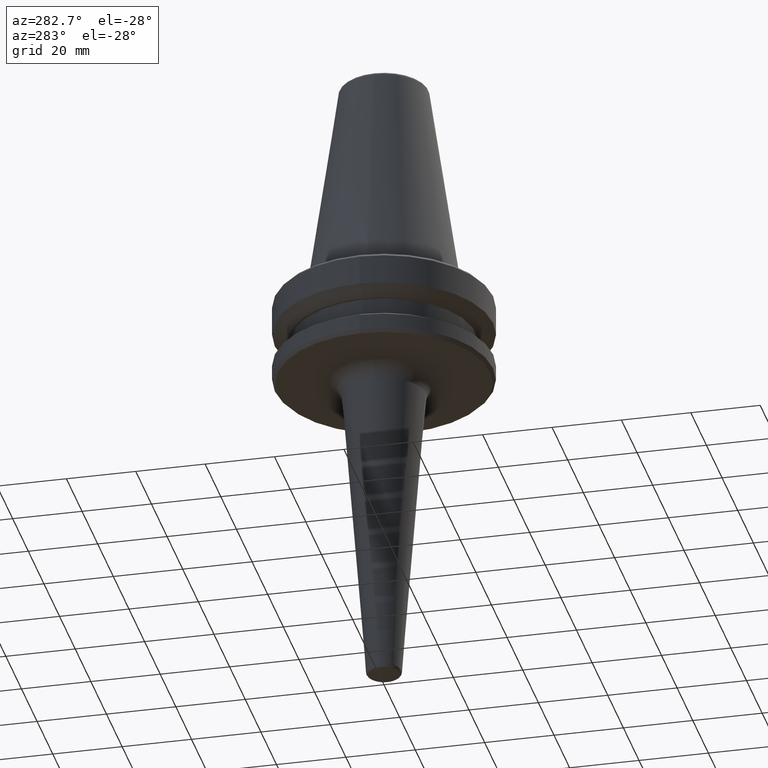
[diagram: clean part render]
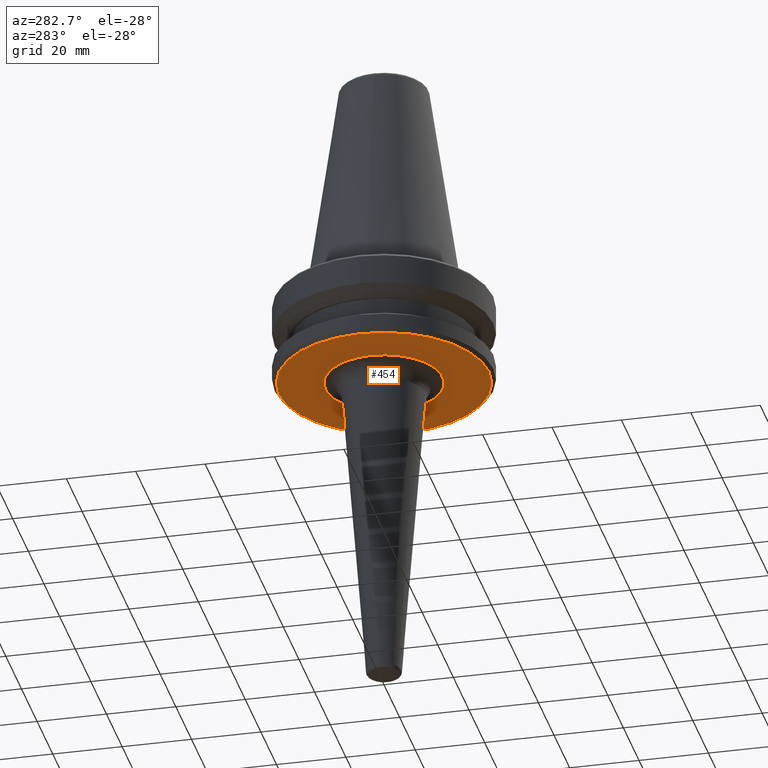
[diagram: same view with one face highlighted and labeled with its STEP entity id]
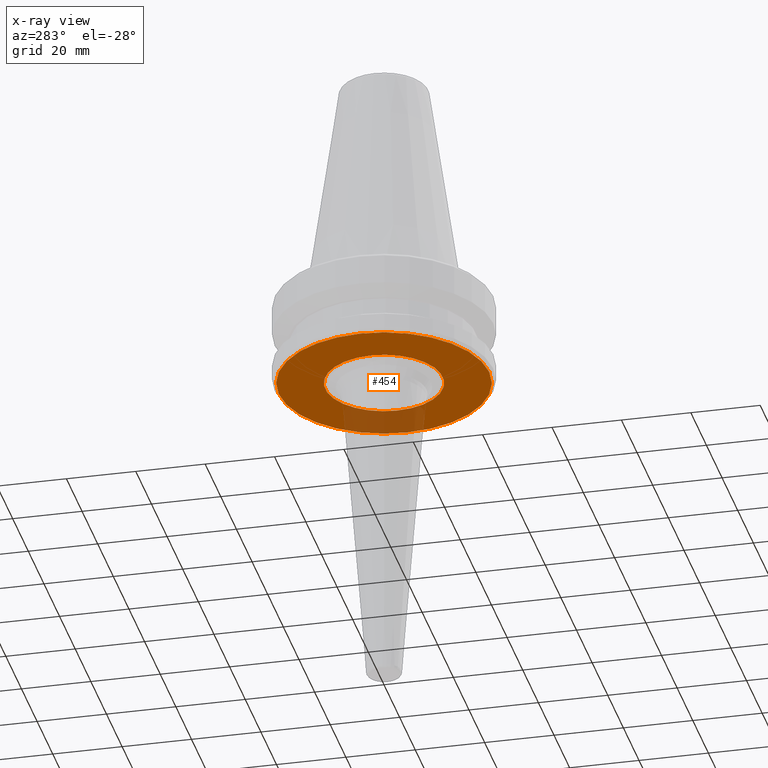
[diagram: x-ray of the same camera — body ghosted, the highlighted face saturated]
A machine part, auxiliary view. The second image highlights one B-rep face of the part: STEP entity #454.
The next image is the same camera in x-ray: the body ghosted, the highlighted face saturated — about 16% of this face is hidden behind the body in this view.
In plain terms, the highlighted planar face has unit normal (0, 0, -1).
Its self-contained STEP definition (entity closure, byte-faithful):
#15 = ORIENTED_EDGE ( 'NONE', *, *, #969, .F. ) ;
#77 = EDGE_CURVE ( 'NONE', #666, #239, #1146, .T. ) ;
#93 = CARTESIAN_POINT ( 'NONE',  ( 0.0000000000000000000, 0.0000000000000000000, -26.99999999999999600 ) ) ;
#175 = DIRECTION ( 'NONE',  ( -1.000000000000000000, 0.0000000000000000000, 0.0000000000000000000 ) ) ;
#185 = DIRECTION ( 'NONE',  ( -0.0000000000000000000, -0.0000000000000000000, 1.000000000000000000 ) ) ;
#193 = CARTESIAN_POINT ( 'NONE',  ( -3.508180771767940200E-015, 3.653032696910941000E-015, -27.00000000000000400 ) ) ;
#197 = DIRECTION ( 'NONE',  ( 0.0000000000000000000, 0.0000000000000000000, -1.000000000000000000 ) ) ;
#224 = CARTESIAN_POINT ( 'NONE',  ( 0.0000000000000000000, 0.0000000000000000000, -26.99999999999999600 ) ) ;
#239 = VERTEX_POINT ( 'NONE', #813 ) ;
#258 = CIRCLE ( 'NONE', #1054, 16.94121119297990700 ) ;
#283 = DIRECTION ( 'NONE',  ( -0.0000000000000000000, -0.0000000000000000000, 1.000000000000000000 ) ) ;
#298 = DIRECTION ( 'NONE',  ( -1.000000000000000000, 0.0000000000000000000, 0.0000000000000000000 ) ) ;
#317 = EDGE_LOOP ( 'NONE', ( #15, #769 ) ) ;
#351 = AXIS2_PLACEMENT_3D ( 'NONE', #224, #814, #1178 ) ;
#369 = CIRCLE ( 'NONE', #513, 30.33431457505076200 ) ;
#396 = AXIS2_PLACEMENT_3D ( 'NONE', #700, #197, #825 ) ;
#454 = ADVANCED_FACE ( 'NONE', ( #686, #916 ), #566, .T. ) ;
#499 = EDGE_CURVE ( 'NONE', #1062, #1058, #1145, .T. ) ;
#513 = AXIS2_PLACEMENT_3D ( 'NONE', #93, #283, #1022 ) ;
#566 = PLANE ( 'NONE',  #396 ) ;
#666 = VERTEX_POINT ( 'NONE', #947 ) ;
#686 = FACE_BOUND ( 'NONE', #1160, .T. ) ;
#700 = CARTESIAN_POINT ( 'NONE',  ( 0.0000000000000000000, 3.088089149698245900E-015, -27.00000000000000400 ) ) ;
#710 = ORIENTED_EDGE ( 'NONE', *, *, #832, .T. ) ;
#769 = ORIENTED_EDGE ( 'NONE', *, *, #499, .F. ) ;
#810 = CARTESIAN_POINT ( 'NONE',  ( -30.33431457505076200, 3.732201245991191800E-015, -26.99999999999999600 ) ) ;
#813 = CARTESIAN_POINT ( 'NONE',  ( -16.94121119297991000, 3.653032696910941000E-015, -27.00000000000000400 ) ) ;
#814 = DIRECTION ( 'NONE',  ( -0.0000000000000000000, -0.0000000000000000000, 1.000000000000000000 ) ) ;
#825 = DIRECTION ( 'NONE',  ( -1.000000000000000000, 0.0000000000000000000, -0.0000000000000000000 ) ) ;
#832 = EDGE_CURVE ( 'NONE', #239, #666, #258, .T. ) ;
#863 = AXIS2_PLACEMENT_3D ( 'NONE', #1137, #1115, #298 ) ;
#916 = FACE_OUTER_BOUND ( 'NONE', #317, .T. ) ;
#947 = CARTESIAN_POINT ( 'NONE',  ( 16.94121119297990300, 5.727732703027156700E-015, -27.00000000000000400 ) ) ;
#969 = EDGE_CURVE ( 'NONE', #1058, #1062, #369, .T. ) ;
#1022 = DIRECTION ( 'NONE',  ( 1.000000000000000000, 0.0000000000000000000, 0.0000000000000000000 ) ) ;
#1054 = AXIS2_PLACEMENT_3D ( 'NONE', #193, #185, #175 ) ;
#1058 = VERTEX_POINT ( 'NONE', #1099 ) ;
#1062 = VERTEX_POINT ( 'NONE', #810 ) ;
#1072 = ORIENTED_EDGE ( 'NONE', *, *, #77, .T. ) ;
#1099 = CARTESIAN_POINT ( 'NONE',  ( 30.33431457505076200, 0.0000000000000000000, -26.99999999999999600 ) ) ;
#1115 = DIRECTION ( 'NONE',  ( -0.0000000000000000000, -0.0000000000000000000, 1.000000000000000000 ) ) ;
#1137 = CARTESIAN_POINT ( 'NONE',  ( -3.508180771767940200E-015, 3.653032696910941000E-015, -27.00000000000000400 ) ) ;
#1145 = CIRCLE ( 'NONE', #351, 30.33431457505076200 ) ;
#1146 = CIRCLE ( 'NONE', #863, 16.94121119297990700 ) ;
#1160 = EDGE_LOOP ( 'NONE', ( #710, #1072 ) ) ;
#1178 = DIRECTION ( 'NONE',  ( 1.000000000000000000, 0.0000000000000000000, 0.0000000000000000000 ) ) ;